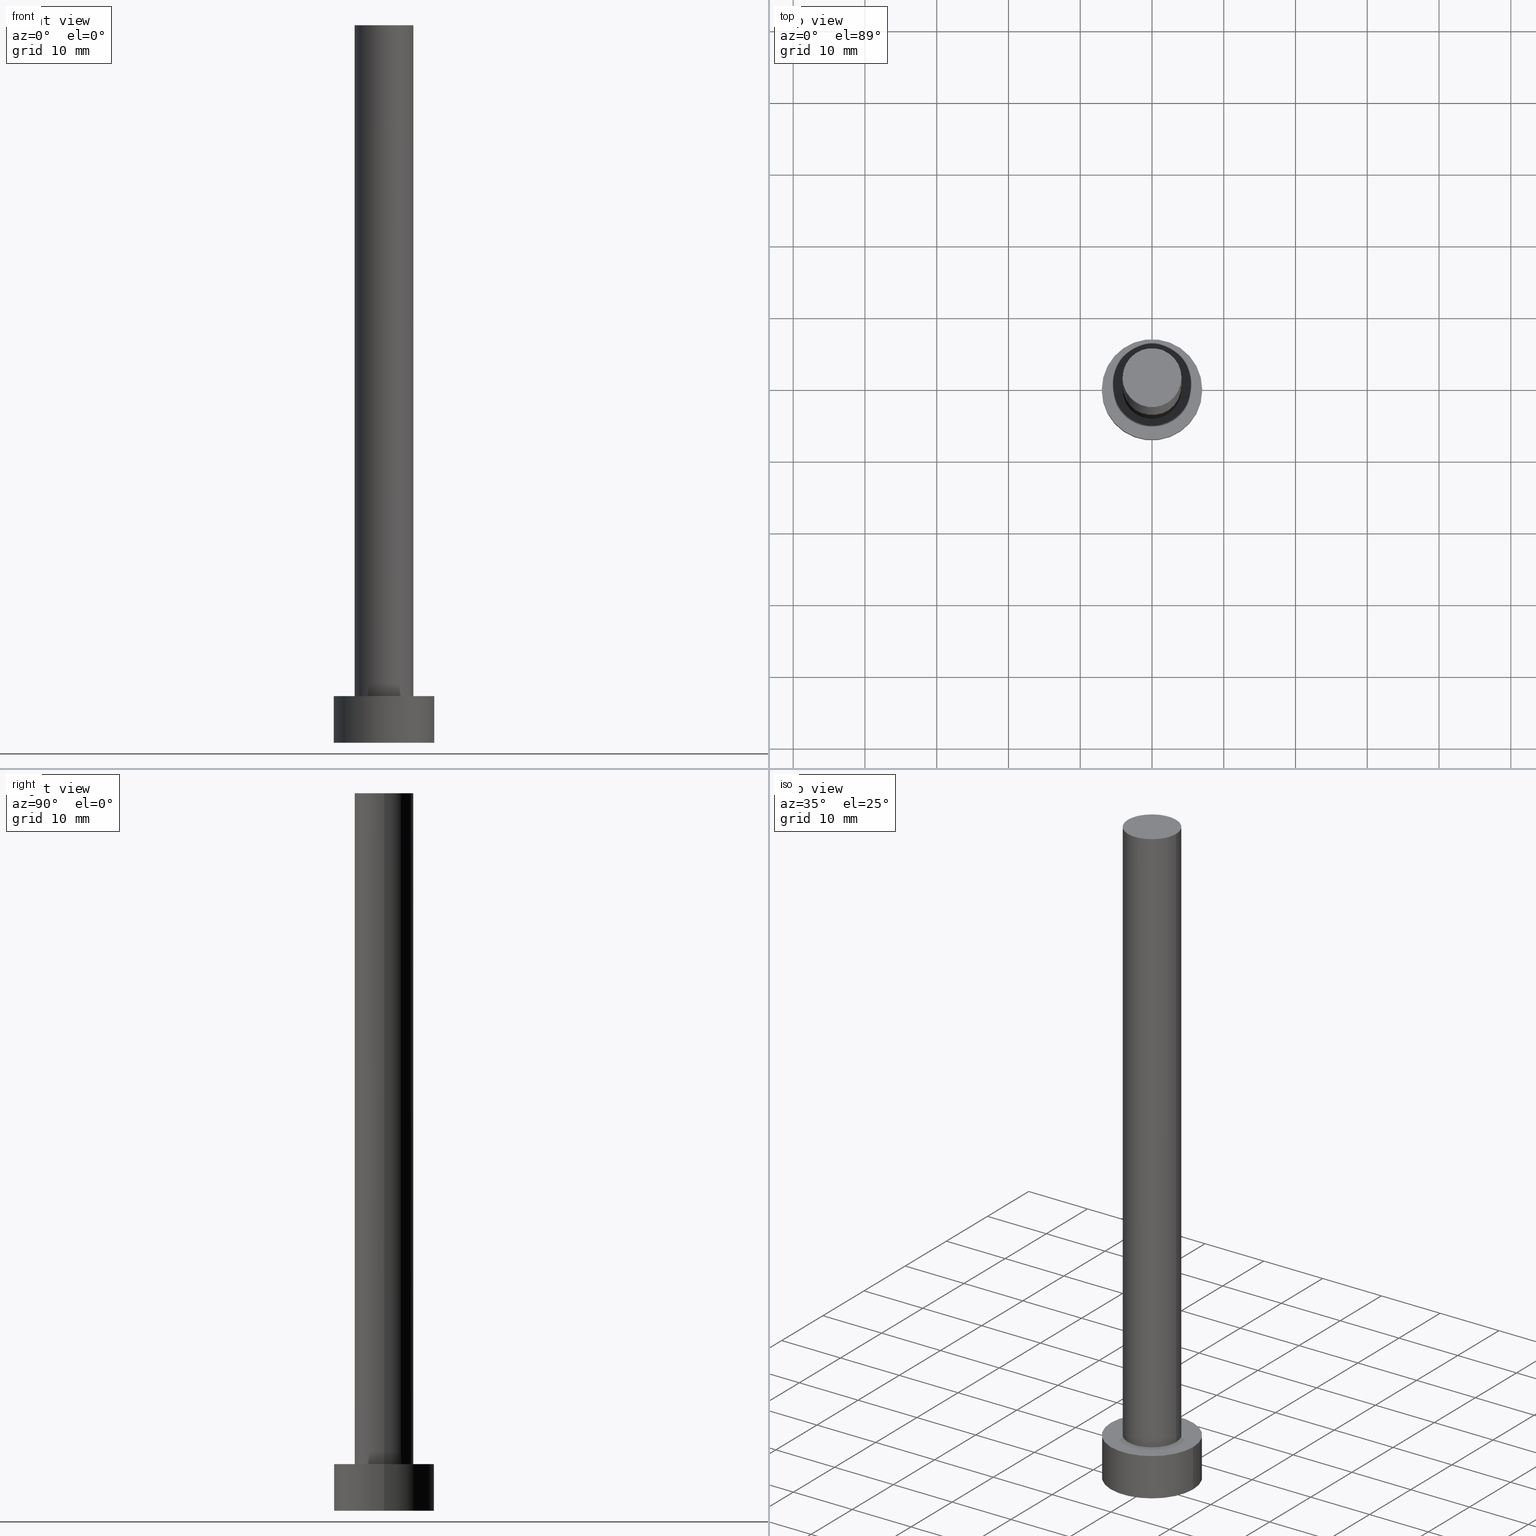
[diagram: canonical four-view strip — front | top / right | iso, engineering-drawing reading convention]
A machine part, canonical four-view strip (front | top / right | iso — engineering-drawing reading convention). The complete STEP part file that produces these views, byte-faithful:
ISO-10303-21;
HEADER;
FILE_DESCRIPTION (( 'STEP AP203' ),
    '1' );
FILE_NAME ('efaf.STEP',
    '2023-02-13T14:17:46',
    ( '' ),
    ( '' ),
    'SwSTEP 2.0',
    'SolidWorks 2019',
    '' );
FILE_SCHEMA (( 'CONFIG_CONTROL_DESIGN' ));
ENDSEC;

DATA;
#1 = CARTESIAN_POINT ( 'NONE',  ( 0.000000000000000000, 0.000000000000000000, 6.500000000000000000 ) ) ;
#2 = DIRECTION ( 'NONE',  ( 0.000000000000000000, 0.000000000000000000, 1.000000000000000000 ) ) ;
#3 = VERTEX_POINT ( 'NONE', #18 ) ;
#4 = CARTESIAN_POINT ( 'NONE',  ( -7.000000000000000000, 0.000000000000000000, 6.500000000000000000 ) ) ;
#5 = VERTEX_POINT ( 'NONE', #59 ) ;
#6 = ORIENTED_EDGE ( 'NONE', *, *, #100, .F. ) ;
#7 = FACE_OUTER_BOUND ( 'NONE', #137, .T. ) ;
#8 = DIRECTION ( 'NONE',  ( 0.000000000000000000, 0.000000000000000000, 1.000000000000000000 ) ) ;
#9 = APPROVAL_STATUS ( 'not_yet_approved' ) ;
#10 = PERSON_AND_ORGANIZATION ( #201, #47 ) ;
#11 = CIRCLE ( 'NONE', #23, 7.000000000000000000 ) ;
#12 = FACE_OUTER_BOUND ( 'NONE', #156, .T. ) ;
#13 = AXIS2_PLACEMENT_3D ( 'NONE', #1, #255, #175 ) ;
#14 = ADVANCED_FACE ( 'NONE', ( #7 ), #95, .T. ) ;
#15 = CYLINDRICAL_SURFACE ( 'NONE', #30, 4.099999999999999645 ) ;
#16 = FACE_BOUND ( 'NONE', #26, .T. ) ;
#17 = AXIS2_PLACEMENT_3D ( 'NONE', #192, #8, #131 ) ;
#18 = CARTESIAN_POINT ( 'NONE',  ( 7.000000000000000000, 8.572527594031471218E-16, 0.000000000000000000 ) ) ;
#19 = EDGE_CURVE ( 'NONE', #5, #3, #11, .T. ) ;
#20 = PRODUCT_DEFINITION ( 'NEZN�M�', '', #60, #241 ) ;
#21 = CARTESIAN_POINT ( 'NONE',  ( 0.000000000000000000, 0.000000000000000000, 6.500000000000000000 ) ) ;
#22 = FACE_OUTER_BOUND ( 'NONE', #205, .T. ) ;
#23 = AXIS2_PLACEMENT_3D ( 'NONE', #181, #2, #186 ) ;
#24 = LOCAL_TIME ( 15, 17, 46.00000000000000000, #107 ) ;
#25 = DIRECTION ( 'NONE',  ( 0.000000000000000000, 0.000000000000000000, 1.000000000000000000 ) ) ;
#26 = EDGE_LOOP ( 'NONE', ( #96, #118 ) ) ;
#27 = ORIENTED_EDGE ( 'NONE', *, *, #57, .F. ) ;
#28 = PRODUCT_RELATED_PRODUCT_CATEGORY ( 'detail', '', ( #43 ) ) ;
#29 = APPROVAL_ROLE ( '' ) ;
#30 = AXIS2_PLACEMENT_3D ( 'NONE', #91, #172, #234 ) ;
#31 = PERSON_AND_ORGANIZATION ( #201, #47 ) ;
#32 = CC_DESIGN_DATE_AND_TIME_ASSIGNMENT ( #212, #34, ( #20 ) ) ;
#33 = PERSON_AND_ORGANIZATION ( #201, #47 ) ;
#34 = DATE_TIME_ROLE ( 'creation_date' ) ;
#35 = FACE_OUTER_BOUND ( 'NONE', #208, .T. ) ;
#36 = AXIS2_PLACEMENT_3D ( 'NONE', #243, #159, #222 ) ;
#37 = DIRECTION ( 'NONE',  ( -1.000000000000000000, 0.000000000000000000, 0.000000000000000000 ) ) ;
#38 = DIRECTION ( 'NONE',  ( 0.000000000000000000, 0.000000000000000000, 1.000000000000000000 ) ) ;
#39 = ADVANCED_FACE ( 'NONE', ( #22 ), #82, .T. ) ;
#40 = CARTESIAN_POINT ( 'NONE',  ( 0.000000000000000000, 0.000000000000000000, 100.0000000000000000 ) ) ;
#41 = APPLICATION_PROTOCOL_DEFINITION ( 'international standard', 'config_control_design', 1994, #151 ) ;
#42 = DIRECTION ( 'NONE',  ( 1.000000000000000000, 0.000000000000000000, 0.000000000000000000 ) ) ;
#43 = PRODUCT ( 'efaf', 'efaf', '', ( #200 ) ) ;
#44 = ORIENTED_EDGE ( 'NONE', *, *, #232, .T. ) ;
#45 = APPROVAL_STATUS ( 'not_yet_approved' ) ;
#46 = PERSON_AND_ORGANIZATION ( #201, #47 ) ;
#47 = ORGANIZATION ( 'NEUR�EN�', 'NEUR�EN�', '' ) ;
#48 = SHAPE_DEFINITION_REPRESENTATION ( #153, #148 ) ;
#49 = CALENDAR_DATE ( 2023, 13, 2 ) ;
#50 = CARTESIAN_POINT ( 'NONE',  ( 0.000000000000000000, 0.000000000000000000, 6.500000000000000000 ) ) ;
#51 = CC_DESIGN_SECURITY_CLASSIFICATION ( #230, ( #60 ) ) ;
#52 = FACE_OUTER_BOUND ( 'NONE', #55, .T. ) ;
#53 = LOCAL_TIME ( 15, 17, 46.00000000000000000, #209 ) ;
#54 = EDGE_CURVE ( 'NONE', #77, #184, #182, .T. ) ;
#55 = EDGE_LOOP ( 'NONE', ( #84, #165, #56, #27 ) ) ;
#56 = ORIENTED_EDGE ( 'NONE', *, *, #100, .T. ) ;
#57 = EDGE_CURVE ( 'NONE', #227, #5, #105, .T. ) ;
#58 = ORIENTED_EDGE ( 'NONE', *, *, #63, .F. ) ;
#59 = CARTESIAN_POINT ( 'NONE',  ( -7.000000000000000000, 0.000000000000000000, 0.000000000000000000 ) ) ;
#60 = PRODUCT_DEFINITION_FORMATION_WITH_SPECIFIED_SOURCE ( 'LIBOVOLN�', '', #43, .NOT_KNOWN. ) ;
#61 = CALENDAR_DATE ( 2023, 13, 2 ) ;
#62 = DIRECTION ( 'NONE',  ( -1.000000000000000000, 0.000000000000000000, 0.000000000000000000 ) ) ;
#63 = EDGE_CURVE ( 'NONE', #184, #77, #146, .T. ) ;
#64 = APPROVAL ( #9, 'NEUR�EN�' ) ;
#65 = VECTOR ( 'NONE', #68, 1000.000000000000000 ) ;
#66 = PERSON_AND_ORGANIZATION_ROLE ( 'creator' ) ;
#67 = COORDINATED_UNIVERSAL_TIME_OFFSET ( 1, 0, .AHEAD. ) ;
#68 = DIRECTION ( 'NONE',  ( -0.000000000000000000, -0.000000000000000000, -1.000000000000000000 ) ) ;
#69 = CC_DESIGN_PERSON_AND_ORGANIZATION_ASSIGNMENT ( #31, #167, ( #230 ) ) ;
#70 = CARTESIAN_POINT ( 'NONE',  ( 4.099999999999999645, 5.021051876504147385E-16, 100.0000000000000000 ) ) ;
#71 = LOCAL_TIME ( 15, 17, 46.00000000000000000, #67 ) ;
#72 = DIRECTION ( 'NONE',  ( -0.000000000000000000, -0.000000000000000000, -1.000000000000000000 ) ) ;
#73 = CC_DESIGN_PERSON_AND_ORGANIZATION_ASSIGNMENT ( #46, #102, ( #43 ) ) ;
#74 = CARTESIAN_POINT ( 'NONE',  ( 0.000000000000000000, 0.000000000000000000, 0.000000000000000000 ) ) ;
#75 = CARTESIAN_POINT ( 'NONE',  ( 4.099999999999999645, 5.021051876504147385E-16, 6.500000000000000000 ) ) ;
#76 = CYLINDRICAL_SURFACE ( 'NONE', #87, 4.099999999999999645 ) ;
#77 = VERTEX_POINT ( 'NONE', #70 ) ;
#78 = DIRECTION ( 'NONE',  ( 0.000000000000000000, 0.000000000000000000, 1.000000000000000000 ) ) ;
#79 = ORIENTED_EDGE ( 'NONE', *, *, #232, .F. ) ;
#80 = ADVANCED_FACE ( 'NONE', ( #218 ), #196, .F. ) ;
#81 = AXIS2_PLACEMENT_3D ( 'NONE', #133, #78, #117 ) ;
#82 = PLANE ( 'NONE',  #36 ) ;
#83 = VERTEX_POINT ( 'NONE', #217 ) ;
#84 = ORIENTED_EDGE ( 'NONE', *, *, #221, .F. ) ;
#85 = AXIS2_PLACEMENT_3D ( 'NONE', #149, #25, #115 ) ;
#86 = ADVANCED_FACE ( 'NONE', ( #12 ), #15, .T. ) ;
#87 = AXIS2_PLACEMENT_3D ( 'NONE', #204, #98, #239 ) ;
#88 = CARTESIAN_POINT ( 'NONE',  ( 4.099999999999999645, 5.021051876504147385E-16, 100.0000000000000000 ) ) ;
#89 = EDGE_CURVE ( 'NONE', #83, #122, #224, .T. ) ;
#90 = CIRCLE ( 'NONE', #134, 7.000000000000000000 ) ;
#91 = CARTESIAN_POINT ( 'NONE',  ( 0.000000000000000000, 0.000000000000000000, 100.0000000000000000 ) ) ;
#92 = AXIS2_PLACEMENT_3D ( 'NONE', #21, #94, #62 ) ;
#93 = CARTESIAN_POINT ( 'NONE',  ( 0.000000000000000000, 0.000000000000000000, 6.500000000000000000 ) ) ;
#94 = DIRECTION ( 'NONE',  ( -0.000000000000000000, -0.000000000000000000, -1.000000000000000000 ) ) ;
#95 = CYLINDRICAL_SURFACE ( 'NONE', #92, 7.000000000000000000 ) ;
#96 = ORIENTED_EDGE ( 'NONE', *, *, #89, .F. ) ;
#97 = ORIENTED_EDGE ( 'NONE', *, *, #19, .T. ) ;
#98 = DIRECTION ( 'NONE',  ( -0.000000000000000000, -0.000000000000000000, -1.000000000000000000 ) ) ;
#99 = ORIENTED_EDGE ( 'NONE', *, *, #173, .T. ) ;
#100 = EDGE_CURVE ( 'NONE', #3, #5, #215, .T. ) ;
#101 =( GEOMETRIC_REPRESENTATION_CONTEXT ( 3 ) GLOBAL_UNCERTAINTY_ASSIGNED_CONTEXT ( ( #178 ) ) GLOBAL_UNIT_ASSIGNED_CONTEXT ( ( #198, #245, #155 ) ) REPRESENTATION_CONTEXT ( 'NONE', 'WORKASPACE' ) );
#102 = PERSON_AND_ORGANIZATION_ROLE ( 'design_owner' ) ;
#103 = APPROVAL_STATUS ( 'not_yet_approved' ) ;
#104 = APPROVAL_DATE_TIME ( #168, #64 ) ;
#105 = LINE ( 'NONE', #126, #65 ) ;
#106 = AXIS2_PLACEMENT_3D ( 'NONE', #74, #38, #176 ) ;
#107 = COORDINATED_UNIVERSAL_TIME_OFFSET ( 1, 0, .AHEAD. ) ;
#108 = LINE ( 'NONE', #88, #166 ) ;
#109 = CC_DESIGN_PERSON_AND_ORGANIZATION_ASSIGNMENT ( #190, #128, ( #60 ) ) ;
#110 = DIRECTION ( 'NONE',  ( 0.000000000000000000, 0.000000000000000000, 1.000000000000000000 ) ) ;
#111 = APPROVAL_PERSON_ORGANIZATION ( #10, #64, #29 ) ;
#112 = CARTESIAN_POINT ( 'NONE',  ( 7.000000000000000000, 8.572527594031471218E-16, 6.500000000000000000 ) ) ;
#113 = MANIFOLD_SOLID_BREP ( 'P�idat vysunut�m3', #139 ) ;
#114 = APPROVAL ( #45, 'NEUR�EN�' ) ;
#115 = DIRECTION ( 'NONE',  ( 1.000000000000000000, 0.000000000000000000, 0.000000000000000000 ) ) ;
#116 = ORIENTED_EDGE ( 'NONE', *, *, #19, .F. ) ;
#117 = DIRECTION ( 'NONE',  ( 1.000000000000000000, 0.000000000000000000, 0.000000000000000000 ) ) ;
#118 = ORIENTED_EDGE ( 'NONE', *, *, #173, .F. ) ;
#119 = CARTESIAN_POINT ( 'NONE',  ( 0.000000000000000000, 0.000000000000000000, 6.500000000000000000 ) ) ;
#120 = ORIENTED_EDGE ( 'NONE', *, *, #221, .T. ) ;
#121 = CC_DESIGN_APPROVAL ( #132, ( #20 ) ) ;
#122 = VERTEX_POINT ( 'NONE', #75 ) ;
#123 = ADVANCED_FACE ( 'NONE', ( #52 ), #254, .T. ) ;
#124 = CALENDAR_DATE ( 2023, 13, 2 ) ;
#125 = CALENDAR_DATE ( 2023, 13, 2 ) ;
#126 = CARTESIAN_POINT ( 'NONE',  ( -7.000000000000000000, 0.000000000000000000, 6.500000000000000000 ) ) ;
#127 = APPROVAL_PERSON_ORGANIZATION ( #33, #114, #231 ) ;
#128 = PERSON_AND_ORGANIZATION_ROLE ( 'design_supplier' ) ;
#129 = CC_DESIGN_DATE_AND_TIME_ASSIGNMENT ( #233, #189, ( #230 ) ) ;
#130 = CALENDAR_DATE ( 2023, 13, 2 ) ;
#131 = DIRECTION ( 'NONE',  ( 1.000000000000000000, 0.000000000000000000, 0.000000000000000000 ) ) ;
#132 = APPROVAL ( #103, 'NEUR�EN�' ) ;
#133 = CARTESIAN_POINT ( 'NONE',  ( 0.000000000000000000, 0.000000000000000000, 0.000000000000000000 ) ) ;
#134 = AXIS2_PLACEMENT_3D ( 'NONE', #119, #161, #158 ) ;
#135 = EDGE_CURVE ( 'NONE', #244, #3, #150, .T. ) ;
#136 = EDGE_LOOP ( 'NONE', ( #116, #6 ) ) ;
#137 = EDGE_LOOP ( 'NONE', ( #142, #79, #179, #97 ) ) ;
#138 = CARTESIAN_POINT ( 'NONE',  ( -4.099999999999999645, 0.000000000000000000, 100.0000000000000000 ) ) ;
#139 = CLOSED_SHELL ( 'NONE', ( #249, #123, #14, #157, #80, #86, #39 ) ) ;
#140 = AXIS2_PLACEMENT_3D ( 'NONE', #50, #152, #37 ) ;
#141 = COORDINATED_UNIVERSAL_TIME_OFFSET ( 1, 0, .AHEAD. ) ;
#142 = ORIENTED_EDGE ( 'NONE', *, *, #135, .F. ) ;
#143 = PERSON_AND_ORGANIZATION ( #201, #47 ) ;
#144 = COORDINATED_UNIVERSAL_TIME_OFFSET ( 1, 0, .AHEAD. ) ;
#145 = PERSON_AND_ORGANIZATION ( #201, #47 ) ;
#146 = CIRCLE ( 'NONE', #17, 4.099999999999999645 ) ;
#147 = DIRECTION ( 'NONE',  ( -0.000000000000000000, -0.000000000000000000, -1.000000000000000000 ) ) ;
#148 = ADVANCED_BREP_SHAPE_REPRESENTATION ( 'efaf', ( #113, #81 ), #101 ) ;
#149 = CARTESIAN_POINT ( 'NONE',  ( 0.000000000000000000, 0.000000000000000000, 6.500000000000000000 ) ) ;
#150 = LINE ( 'NONE', #112, #252 ) ;
#151 = APPLICATION_CONTEXT ( 'configuration controlled 3d designs of mechanical parts and assemblies' ) ;
#152 = DIRECTION ( 'NONE',  ( -0.000000000000000000, -0.000000000000000000, -1.000000000000000000 ) ) ;
#153 = PRODUCT_DEFINITION_SHAPE ( 'NONE', 'NONE',  #20 ) ;
#154 = CARTESIAN_POINT ( 'NONE',  ( 0.000000000000000000, 0.000000000000000000, 6.500000000000000000 ) ) ;
#155 =( NAMED_UNIT ( * ) SI_UNIT ( $, .STERADIAN. ) SOLID_ANGLE_UNIT ( ) );
#156 = EDGE_LOOP ( 'NONE', ( #220, #58, #226, #246 ) ) ;
#157 = ADVANCED_FACE ( 'NONE', ( #16, #35 ), #235, .T. ) ;
#158 = DIRECTION ( 'NONE',  ( 1.000000000000000000, 0.000000000000000000, 0.000000000000000000 ) ) ;
#159 = DIRECTION ( 'NONE',  ( 0.000000000000000000, 0.000000000000000000, 1.000000000000000000 ) ) ;
#160 = CIRCLE ( 'NONE', #85, 4.099999999999999645 ) ;
#161 = DIRECTION ( 'NONE',  ( 0.000000000000000000, 0.000000000000000000, 1.000000000000000000 ) ) ;
#162 = DIRECTION ( 'NONE',  ( 1.000000000000000000, 0.000000000000000000, 0.000000000000000000 ) ) ;
#163 = ORIENTED_EDGE ( 'NONE', *, *, #54, .T. ) ;
#164 = DATE_AND_TIME ( #124, #24 ) ;
#165 = ORIENTED_EDGE ( 'NONE', *, *, #135, .T. ) ;
#166 = VECTOR ( 'NONE', #72, 1000.000000000000000 ) ;
#167 = PERSON_AND_ORGANIZATION_ROLE ( 'classification_officer' ) ;
#168 = DATE_AND_TIME ( #49, #251 ) ;
#169 = CIRCLE ( 'NONE', #195, 7.000000000000000000 ) ;
#170 = PERSON_AND_ORGANIZATION_ROLE ( 'creator' ) ;
#171 = EDGE_CURVE ( 'NONE', #77, #122, #108, .T. ) ;
#172 = DIRECTION ( 'NONE',  ( -0.000000000000000000, -0.000000000000000000, -1.000000000000000000 ) ) ;
#173 = EDGE_CURVE ( 'NONE', #122, #83, #160, .T. ) ;
#174 = APPROVAL_PERSON_ORGANIZATION ( #145, #132, #211 ) ;
#175 = DIRECTION ( 'NONE',  ( 1.000000000000000000, 0.000000000000000000, 0.000000000000000000 ) ) ;
#176 = DIRECTION ( 'NONE',  ( 1.000000000000000000, 0.000000000000000000, 0.000000000000000000 ) ) ;
#177 = DIRECTION ( 'NONE',  ( 0.000000000000000000, 0.000000000000000000, 1.000000000000000000 ) ) ;
#178 = UNCERTAINTY_MEASURE_WITH_UNIT (LENGTH_MEASURE( 1.000000000000000082E-05 ), #198, 'distance_accuracy_value', 'NONE');
#179 = ORIENTED_EDGE ( 'NONE', *, *, #57, .T. ) ;
#180 = FACE_OUTER_BOUND ( 'NONE', #185, .T. ) ;
#181 = CARTESIAN_POINT ( 'NONE',  ( 0.000000000000000000, 0.000000000000000000, 0.000000000000000000 ) ) ;
#182 = CIRCLE ( 'NONE', #237, 4.099999999999999645 ) ;
#183 = DIRECTION ( 'NONE',  ( -0.000000000000000000, -0.000000000000000000, -1.000000000000000000 ) ) ;
#184 = VERTEX_POINT ( 'NONE', #247 ) ;
#185 = EDGE_LOOP ( 'NONE', ( #199, #250, #99, #223 ) ) ;
#186 = DIRECTION ( 'NONE',  ( 1.000000000000000000, 0.000000000000000000, 0.000000000000000000 ) ) ;
#187 = CC_DESIGN_APPROVAL ( #114, ( #60 ) ) ;
#188 = APPLICATION_PROTOCOL_DEFINITION ( 'international standard', 'config_control_design', 1994, #193 ) ;
#189 = DATE_TIME_ROLE ( 'classification_date' ) ;
#190 = PERSON_AND_ORGANIZATION ( #201, #47 ) ;
#191 = APPROVAL_DATE_TIME ( #229, #114 ) ;
#192 = CARTESIAN_POINT ( 'NONE',  ( 0.000000000000000000, 0.000000000000000000, 100.0000000000000000 ) ) ;
#193 = APPLICATION_CONTEXT ( 'configuration controlled 3d designs of mechanical parts and assemblies' ) ;
#194 = DIRECTION ( 'NONE',  ( 1.000000000000000000, 0.000000000000000000, -0.000000000000000000 ) ) ;
#195 = AXIS2_PLACEMENT_3D ( 'NONE', #154, #225, #42 ) ;
#196 = PLANE ( 'NONE',  #236 ) ;
#197 = EDGE_CURVE ( 'NONE', #184, #83, #242, .T. ) ;
#198 =( LENGTH_UNIT ( ) NAMED_UNIT ( * ) SI_UNIT ( .MILLI., .METRE. ) );
#199 = ORIENTED_EDGE ( 'NONE', *, *, #54, .F. ) ;
#200 = MECHANICAL_CONTEXT ( 'NONE', #151, 'mechanical' ) ;
#201 = PERSON ( 'NEUR�EN�', 'NEUR�EN�', 'NEUR�EN�', ('NEUR�EN�'), ('NEUR�EN�'), ('NEUR�EN�') ) ;
#202 = ORIENTED_EDGE ( 'NONE', *, *, #63, .T. ) ;
#203 = DIRECTION ( 'NONE',  ( 0.000000000000000000, 0.000000000000000000, 1.000000000000000000 ) ) ;
#204 = CARTESIAN_POINT ( 'NONE',  ( 0.000000000000000000, 0.000000000000000000, 100.0000000000000000 ) ) ;
#205 = EDGE_LOOP ( 'NONE', ( #202, #163 ) ) ;
#206 = AXIS2_PLACEMENT_3D ( 'NONE', #93, #177, #213 ) ;
#207 = CARTESIAN_POINT ( 'NONE',  ( 7.000000000000000000, 8.572527594031471218E-16, 6.500000000000000000 ) ) ;
#208 = EDGE_LOOP ( 'NONE', ( #44, #120 ) ) ;
#209 = COORDINATED_UNIVERSAL_TIME_OFFSET ( 1, 0, .AHEAD. ) ;
#210 = CC_DESIGN_PERSON_AND_ORGANIZATION_ASSIGNMENT ( #143, #66, ( #20 ) ) ;
#211 = APPROVAL_ROLE ( '' ) ;
#212 = DATE_AND_TIME ( #130, #219 ) ;
#213 = DIRECTION ( 'NONE',  ( 1.000000000000000000, 0.000000000000000000, -0.000000000000000000 ) ) ;
#214 = CARTESIAN_POINT ( 'NONE',  ( 0.000000000000000000, 0.000000000000000000, 0.000000000000000000 ) ) ;
#215 = CIRCLE ( 'NONE', #106, 7.000000000000000000 ) ;
#216 = CC_DESIGN_APPROVAL ( #64, ( #230 ) ) ;
#217 = CARTESIAN_POINT ( 'NONE',  ( -4.099999999999999645, 0.000000000000000000, 6.500000000000000000 ) ) ;
#218 = FACE_OUTER_BOUND ( 'NONE', #136, .T. ) ;
#219 = LOCAL_TIME ( 15, 17, 46.00000000000000000, #144 ) ;
#220 = ORIENTED_EDGE ( 'NONE', *, *, #171, .F. ) ;
#221 = EDGE_CURVE ( 'NONE', #244, #227, #90, .T. ) ;
#222 = DIRECTION ( 'NONE',  ( 1.000000000000000000, 0.000000000000000000, -0.000000000000000000 ) ) ;
#223 = ORIENTED_EDGE ( 'NONE', *, *, #197, .F. ) ;
#224 = CIRCLE ( 'NONE', #13, 4.099999999999999645 ) ;
#225 = DIRECTION ( 'NONE',  ( 0.000000000000000000, 0.000000000000000000, 1.000000000000000000 ) ) ;
#226 = ORIENTED_EDGE ( 'NONE', *, *, #197, .T. ) ;
#227 = VERTEX_POINT ( 'NONE', #4 ) ;
#228 = APPROVAL_DATE_TIME ( #164, #132 ) ;
#229 = DATE_AND_TIME ( #125, #53 ) ;
#230 = SECURITY_CLASSIFICATION ( '', '', #253 ) ;
#231 = APPROVAL_ROLE ( '' ) ;
#232 = EDGE_CURVE ( 'NONE', #227, #244, #169, .T. ) ;
#233 = DATE_AND_TIME ( #61, #71 ) ;
#234 = DIRECTION ( 'NONE',  ( -1.000000000000000000, 0.000000000000000000, 0.000000000000000000 ) ) ;
#235 = PLANE ( 'NONE',  #206 ) ;
#236 = AXIS2_PLACEMENT_3D ( 'NONE', #214, #110, #194 ) ;
#237 = AXIS2_PLACEMENT_3D ( 'NONE', #40, #203, #162 ) ;
#238 = VECTOR ( 'NONE', #183, 1000.000000000000000 ) ;
#239 = DIRECTION ( 'NONE',  ( -1.000000000000000000, 0.000000000000000000, 0.000000000000000000 ) ) ;
#240 = CC_DESIGN_PERSON_AND_ORGANIZATION_ASSIGNMENT ( #248, #170, ( #60 ) ) ;
#241 = DESIGN_CONTEXT ( 'detailed design', #193, 'design' ) ;
#242 = LINE ( 'NONE', #138, #238 ) ;
#243 = CARTESIAN_POINT ( 'NONE',  ( 0.000000000000000000, 0.000000000000000000, 100.0000000000000000 ) ) ;
#244 = VERTEX_POINT ( 'NONE', #207 ) ;
#245 =( NAMED_UNIT ( * ) PLANE_ANGLE_UNIT ( ) SI_UNIT ( $, .RADIAN. ) );
#246 = ORIENTED_EDGE ( 'NONE', *, *, #89, .T. ) ;
#247 = CARTESIAN_POINT ( 'NONE',  ( -4.099999999999999645, 0.000000000000000000, 100.0000000000000000 ) ) ;
#248 = PERSON_AND_ORGANIZATION ( #201, #47 ) ;
#249 = ADVANCED_FACE ( 'NONE', ( #180 ), #76, .T. ) ;
#250 = ORIENTED_EDGE ( 'NONE', *, *, #171, .T. ) ;
#251 = LOCAL_TIME ( 15, 17, 46.00000000000000000, #141 ) ;
#252 = VECTOR ( 'NONE', #147, 1000.000000000000000 ) ;
#253 = SECURITY_CLASSIFICATION_LEVEL ( 'unclassified' ) ;
#254 = CYLINDRICAL_SURFACE ( 'NONE', #140, 7.000000000000000000 ) ;
#255 = DIRECTION ( 'NONE',  ( 0.000000000000000000, 0.000000000000000000, 1.000000000000000000 ) ) ;
ENDSEC;
END-ISO-10303-21;
